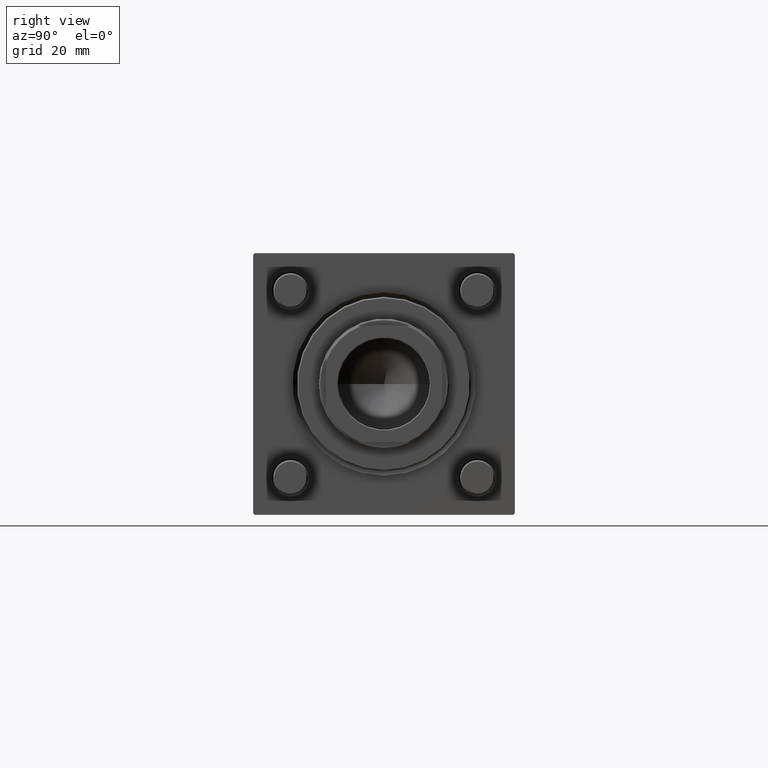
[diagram: clean part render]
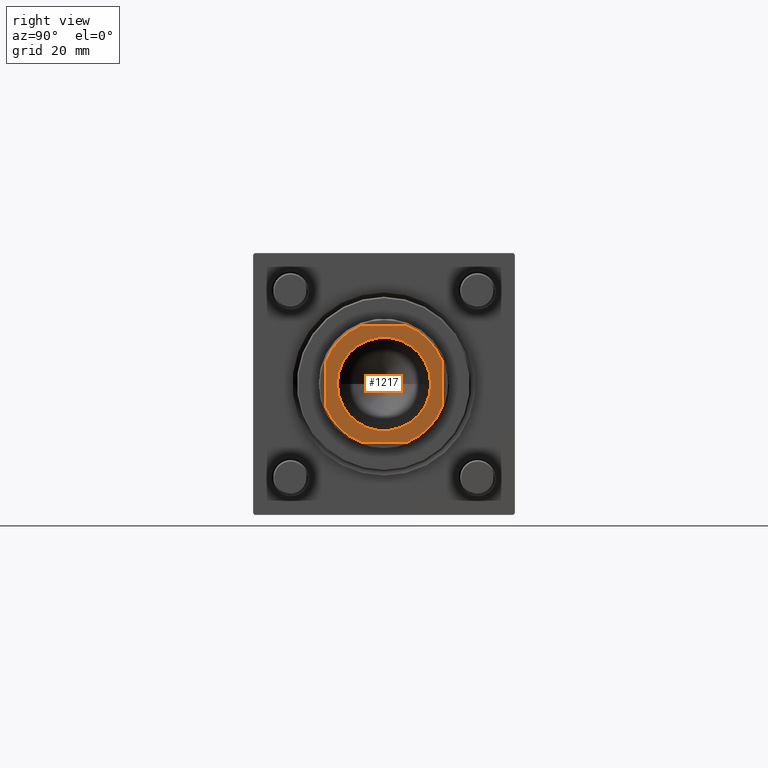
[diagram: same view with one face highlighted and labeled with its STEP entity id]
A machine part, right view. The second image highlights one B-rep face of the part: STEP entity #1217.
In plain terms, the highlighted planar face has unit normal (1, 0, 0).
Its self-contained STEP definition (entity closure, byte-faithful):
#456 = CIRCLE ( 'NONE', #9614, 21.49999999999996447 ) ;
#1217 = ADVANCED_FACE ( 'NONE', ( #48975, #19711 ), #19429, .T. ) ;
#1447 = CARTESIAN_POINT ( 'NONE',  ( -20.00000000000000000, 7.889866919029805636, 150.0000000000000284 ) ) ;
#2241 = CIRCLE ( 'NONE', #26949, 21.50000000000002132 ) ;
#3021 = VERTEX_POINT ( 'NONE', #20655 ) ;
#3441 = ORIENTED_EDGE ( 'NONE', *, *, #7992, .T. ) ;
#4542 = DIRECTION ( 'NONE',  ( -0.000000000000000000, 0.000000000000000000, 1.000000000000000000 ) ) ;
#4724 = AXIS2_PLACEMENT_3D ( 'NONE', #44677, #40940, #5410 ) ;
#5055 = DIRECTION ( 'NONE',  ( -0.000000000000000000, 0.000000000000000000, 1.000000000000000000 ) ) ;
#5331 = DIRECTION ( 'NONE',  ( 1.000000000000000000, 0.000000000000000000, 0.000000000000000000 ) ) ;
#5395 = ORIENTED_EDGE ( 'NONE', *, *, #33932, .T. ) ;
#5410 = DIRECTION ( 'NONE',  ( 1.000000000000000000, 0.000000000000000000, 0.000000000000000000 ) ) ;
#7067 = CARTESIAN_POINT ( 'NONE',  ( -7.889866919029809189, -20.00000000000000000, 150.0000000000000284 ) ) ;
#7992 = EDGE_CURVE ( 'NONE', #55393, #39040, #44276, .T. ) ;
#9503 = AXIS2_PLACEMENT_3D ( 'NONE', #34852, #5055, #5331 ) ;
#9614 = AXIS2_PLACEMENT_3D ( 'NONE', #55308, #16623, #16053 ) ;
#10118 = CARTESIAN_POINT ( 'NONE',  ( -19.99999999999999645, -20.00000000000000000, 150.0000000000000284 ) ) ;
#10213 = VERTEX_POINT ( 'NONE', #44641 ) ;
#10299 = CARTESIAN_POINT ( 'NONE',  ( 7.889866919029809189, 20.00000000000000000, 150.0000000000000284 ) ) ;
#10887 = CARTESIAN_POINT ( 'NONE',  ( 0.000000000000000000, 0.000000000000000000, 150.0000000000000284 ) ) ;
#12521 = DIRECTION ( 'NONE',  ( -0.000000000000000000, 0.000000000000000000, 1.000000000000000000 ) ) ;
#12760 = CARTESIAN_POINT ( 'NONE',  ( 16.05000000000002203, 0.000000000000000000, 150.0000000000000284 ) ) ;
#12861 = EDGE_CURVE ( 'NONE', #3021, #28254, #456, .T. ) ;
#14603 = VECTOR ( 'NONE', #50644, 1000.000000000000000 ) ;
#15682 = CARTESIAN_POINT ( 'NONE',  ( -20.00000000000000355, 20.00000000000000000, 150.0000000000000284 ) ) ;
#16023 = DIRECTION ( 'NONE',  ( 1.000000000000000000, 0.000000000000000000, 0.000000000000000000 ) ) ;
#16038 = CARTESIAN_POINT ( 'NONE',  ( 20.00000000000000000, 7.889866919029812742, 150.0000000000000284 ) ) ;
#16053 = DIRECTION ( 'NONE',  ( 1.000000000000000000, 0.000000000000000000, 0.000000000000000000 ) ) ;
#16623 = DIRECTION ( 'NONE',  ( -0.000000000000000000, 0.000000000000000000, 1.000000000000000000 ) ) ;
#18104 = CARTESIAN_POINT ( 'NONE',  ( -20.00000000000000355, 20.00000000000000000, 150.0000000000000284 ) ) ;
#18481 = VECTOR ( 'NONE', #36139, 1000.000000000000000 ) ;
#19429 = PLANE ( 'NONE',  #4724 ) ;
#19711 = FACE_OUTER_BOUND ( 'NONE', #20036, .T. ) ;
#20036 = EDGE_LOOP ( 'NONE', ( #5395, #3441, #37473, #44045, #45362, #56700, #26065, #25911 ) ) ;
#20176 = VERTEX_POINT ( 'NONE', #7067 ) ;
#20655 = CARTESIAN_POINT ( 'NONE',  ( 7.889866919029648429, -20.00000000000000000, 150.0000000000000284 ) ) ;
#20757 = CARTESIAN_POINT ( 'NONE',  ( -16.05000000000002203, 1.965558112631504571E-15, 150.0000000000000284 ) ) ;
#22007 = DIRECTION ( 'NONE',  ( 1.000000000000000000, 0.000000000000000000, 0.000000000000000000 ) ) ;
#22500 = EDGE_CURVE ( 'NONE', #20176, #3021, #49390, .T. ) ;
#25911 = ORIENTED_EDGE ( 'NONE', *, *, #12861, .T. ) ;
#25936 = VERTEX_POINT ( 'NONE', #54822 ) ;
#26065 = ORIENTED_EDGE ( 'NONE', *, *, #22500, .T. ) ;
#26945 = LINE ( 'NONE', #40137, #42254 ) ;
#26949 = AXIS2_PLACEMENT_3D ( 'NONE', #30322, #4542, #22007 ) ;
#27114 = EDGE_LOOP ( 'NONE', ( #30581, #34659 ) ) ;
#28254 = VERTEX_POINT ( 'NONE', #37088 ) ;
#28720 = VERTEX_POINT ( 'NONE', #1447 ) ;
#29429 = VERTEX_POINT ( 'NONE', #20757 ) ;
#30001 = DIRECTION ( 'NONE',  ( 1.000000000000000000, 0.000000000000000000, 0.000000000000000000 ) ) ;
#30211 = EDGE_CURVE ( 'NONE', #25936, #20176, #42030, .T. ) ;
#30266 = EDGE_CURVE ( 'NONE', #28720, #25936, #54934, .T. ) ;
#30322 = CARTESIAN_POINT ( 'NONE',  ( 0.000000000000000000, 0.000000000000000000, 150.0000000000000284 ) ) ;
#30581 = ORIENTED_EDGE ( 'NONE', *, *, #56339, .T. ) ;
#32879 = AXIS2_PLACEMENT_3D ( 'NONE', #51773, #12521, #30001 ) ;
#33932 = EDGE_CURVE ( 'NONE', #28254, #55393, #26945, .T. ) ;
#34596 = DIRECTION ( 'NONE',  ( 1.000000000000000000, 0.000000000000000000, 0.000000000000000000 ) ) ;
#34659 = ORIENTED_EDGE ( 'NONE', *, *, #35633, .T. ) ;
#34852 = CARTESIAN_POINT ( 'NONE',  ( 0.000000000000000000, 0.000000000000000000, 150.0000000000000284 ) ) ;
#35300 = AXIS2_PLACEMENT_3D ( 'NONE', #43770, #39744, #34596 ) ;
#35633 = EDGE_CURVE ( 'NONE', #29429, #38683, #35798, .T. ) ;
#35798 = CIRCLE ( 'NONE', #55904, 16.05000000000002203 ) ;
#36113 = DIRECTION ( 'NONE',  ( -1.734723475976807094E-16, 1.000000000000000000, -0.000000000000000000 ) ) ;
#36139 = DIRECTION ( 'NONE',  ( -1.000000000000000000, -0.000000000000000000, -0.000000000000000000 ) ) ;
#37088 = CARTESIAN_POINT ( 'NONE',  ( 20.00000000000000000, -7.889866919029643100, 150.0000000000000284 ) ) ;
#37473 = ORIENTED_EDGE ( 'NONE', *, *, #39198, .T. ) ;
#38092 = DIRECTION ( 'NONE',  ( 0.000000000000000000, -0.000000000000000000, -1.000000000000000000 ) ) ;
#38683 = VERTEX_POINT ( 'NONE', #12760 ) ;
#39040 = VERTEX_POINT ( 'NONE', #10299 ) ;
#39198 = EDGE_CURVE ( 'NONE', #39040, #10213, #55923, .T. ) ;
#39744 = DIRECTION ( 'NONE',  ( 0.000000000000000000, -0.000000000000000000, -1.000000000000000000 ) ) ;
#40137 = CARTESIAN_POINT ( 'NONE',  ( 19.99999999999999645, 20.00000000000000000, 150.0000000000000284 ) ) ;
#40773 = CIRCLE ( 'NONE', #35300, 16.05000000000002203 ) ;
#40940 = DIRECTION ( 'NONE',  ( -0.000000000000000000, 0.000000000000000000, 1.000000000000000000 ) ) ;
#42030 = CIRCLE ( 'NONE', #32879, 21.50000000000002132 ) ;
#42254 = VECTOR ( 'NONE', #36113, 1000.000000000000000 ) ;
#43770 = CARTESIAN_POINT ( 'NONE',  ( 0.000000000000000000, 0.000000000000000000, 150.0000000000000284 ) ) ;
#44045 = ORIENTED_EDGE ( 'NONE', *, *, #51871, .T. ) ;
#44276 = CIRCLE ( 'NONE', #9503, 21.50000000000002132 ) ;
#44641 = CARTESIAN_POINT ( 'NONE',  ( -7.889866919029809189, 20.00000000000000000, 150.0000000000000284 ) ) ;
#44677 = CARTESIAN_POINT ( 'NONE',  ( 0.000000000000000000, 0.000000000000000000, 150.0000000000000284 ) ) ;
#45080 = DIRECTION ( 'NONE',  ( 1.000000000000000000, 0.000000000000000000, 0.000000000000000000 ) ) ;
#45362 = ORIENTED_EDGE ( 'NONE', *, *, #30266, .T. ) ;
#48975 = FACE_BOUND ( 'NONE', #27114, .T. ) ;
#49390 = LINE ( 'NONE', #10118, #52773 ) ;
#50644 = DIRECTION ( 'NONE',  ( 1.734723475976807094E-16, -1.000000000000000000, 0.000000000000000000 ) ) ;
#51773 = CARTESIAN_POINT ( 'NONE',  ( 0.000000000000000000, 0.000000000000000000, 150.0000000000000284 ) ) ;
#51871 = EDGE_CURVE ( 'NONE', #10213, #28720, #2241, .T. ) ;
#52773 = VECTOR ( 'NONE', #45080, 1000.000000000000000 ) ;
#54822 = CARTESIAN_POINT ( 'NONE',  ( -20.00000000000000000, -7.889866919029812742, 150.0000000000000284 ) ) ;
#54934 = LINE ( 'NONE', #15682, #14603 ) ;
#55308 = CARTESIAN_POINT ( 'NONE',  ( 0.000000000000000000, 0.000000000000000000, 150.0000000000000284 ) ) ;
#55393 = VERTEX_POINT ( 'NONE', #16038 ) ;
#55904 = AXIS2_PLACEMENT_3D ( 'NONE', #10887, #38092, #16023 ) ;
#55923 = LINE ( 'NONE', #18104, #18481 ) ;
#56339 = EDGE_CURVE ( 'NONE', #38683, #29429, #40773, .T. ) ;
#56700 = ORIENTED_EDGE ( 'NONE', *, *, #30211, .T. ) ;